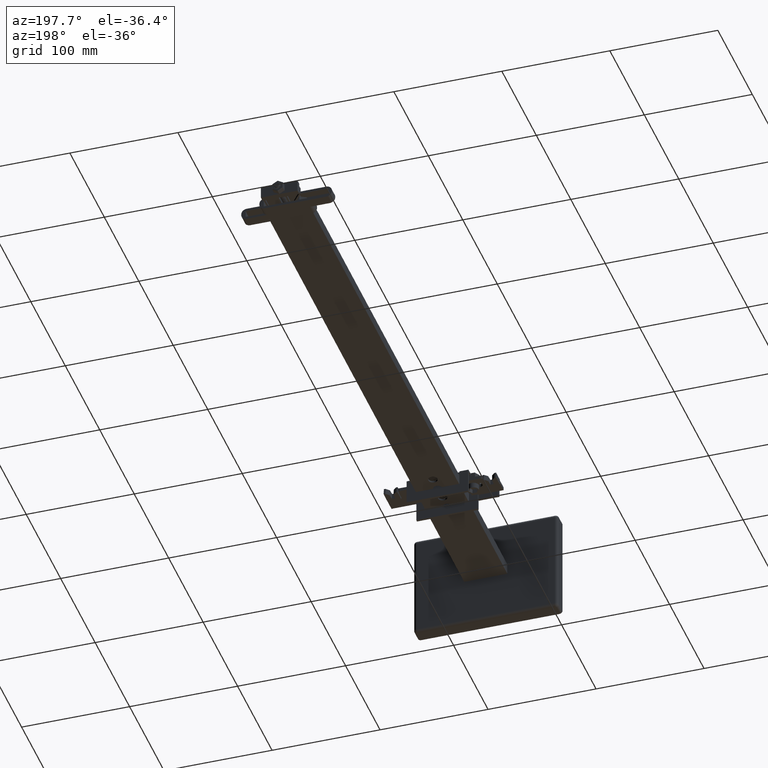
[diagram: clean part render]
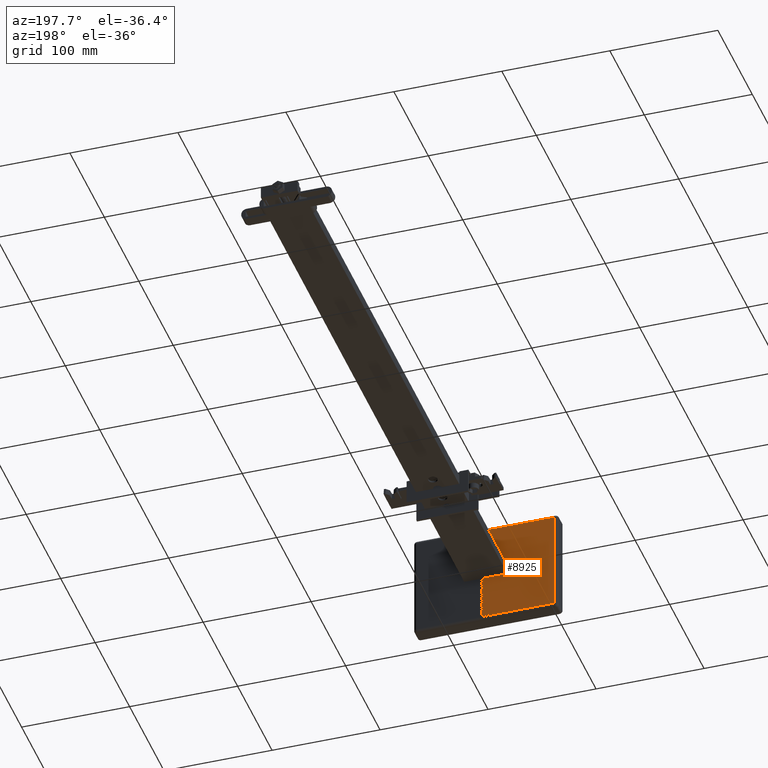
[diagram: same view with one face highlighted and labeled with its STEP entity id]
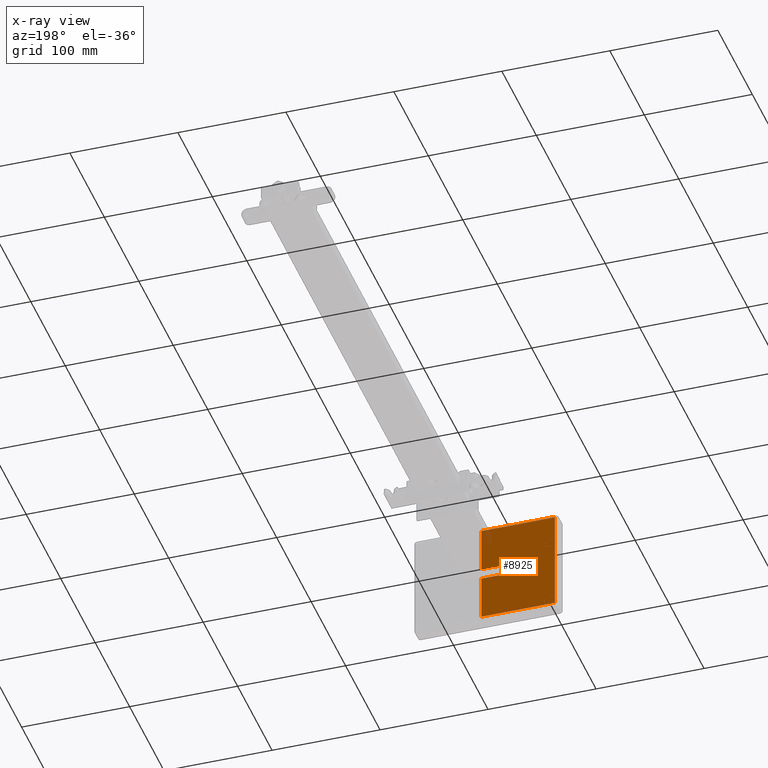
[diagram: x-ray of the same camera — body ghosted, the highlighted face saturated]
A machine part, auxiliary view. The second image highlights one B-rep face of the part: STEP entity #8925.
The next image is the same camera in x-ray: the body ghosted, the highlighted face saturated — about 2% of this face is hidden behind the body in this view.
In plain terms, the highlighted planar face has unit normal (0, -1, 0).
Its self-contained STEP definition (entity closure, byte-faithful):
#1067=FACE_OUTER_BOUND('',#1590,.T.);
#1590=EDGE_LOOP('',(#6289,#6290,#6291,#6292,#6293,#6294,#6295,#6296));
#2173=LINE('',#12685,#2986);
#2177=LINE('',#12694,#2990);
#2179=LINE('',#12698,#2992);
#2181=LINE('',#12702,#2994);
#2182=LINE('',#12705,#2995);
#2183=LINE('',#12707,#2996);
#2184=LINE('',#12709,#2997);
#2185=LINE('',#12710,#2998);
#2986=VECTOR('',#10525,10.);
#2990=VECTOR('',#10533,10.);
#2992=VECTOR('',#10537,10.);
#2994=VECTOR('',#10541,10.);
#2995=VECTOR('',#10544,10.);
#2996=VECTOR('',#10545,10.);
#2997=VECTOR('',#10546,10.);
#2998=VECTOR('',#10547,10.);
#3779=VERTEX_POINT('',#12682);
#3780=VERTEX_POINT('',#12684);
#3783=VERTEX_POINT('',#12692);
#3784=VERTEX_POINT('',#12696);
#3785=VERTEX_POINT('',#12700);
#3786=VERTEX_POINT('',#12704);
#3787=VERTEX_POINT('',#12706);
#3788=VERTEX_POINT('',#12708);
#4733=EDGE_CURVE('',#3779,#3780,#2173,.T.);
#4738=EDGE_CURVE('',#3779,#3783,#2177,.T.);
#4740=EDGE_CURVE('',#3783,#3784,#2179,.T.);
#4742=EDGE_CURVE('',#3784,#3785,#2181,.T.);
#4743=EDGE_CURVE('',#3786,#3785,#2182,.T.);
#4744=EDGE_CURVE('',#3787,#3786,#2183,.T.);
#4745=EDGE_CURVE('',#3788,#3787,#2184,.T.);
#4746=EDGE_CURVE('',#3780,#3788,#2185,.T.);
#6289=ORIENTED_EDGE('',*,*,#4738,.T.);
#6290=ORIENTED_EDGE('',*,*,#4740,.T.);
#6291=ORIENTED_EDGE('',*,*,#4742,.T.);
#6292=ORIENTED_EDGE('',*,*,#4743,.F.);
#6293=ORIENTED_EDGE('',*,*,#4744,.F.);
#6294=ORIENTED_EDGE('',*,*,#4745,.F.);
#6295=ORIENTED_EDGE('',*,*,#4746,.F.);
#6296=ORIENTED_EDGE('',*,*,#4733,.F.);
#8692=PLANE('',#9611);
#8925=ADVANCED_FACE('',(#1067),#8692,.F.);
#9611=AXIS2_PLACEMENT_3D('',#12703,#10542,#10543);
#10525=DIRECTION('',(0.,1.,0.));
#10533=DIRECTION('',(0.,0.,1.));
#10537=DIRECTION('',(0.,-1.,0.));
#10541=DIRECTION('',(0.,0.,-1.));
#10542=DIRECTION('center_axis',(1.,0.,0.));
#10543=DIRECTION('ref_axis',(0.,0.,-1.));
#10544=DIRECTION('',(0.,1.,0.));
#10545=DIRECTION('',(0.,0.,-1.));
#10546=DIRECTION('',(0.,-1.,0.));
#10547=DIRECTION('',(0.,0.,1.));
#12682=CARTESIAN_POINT('',(0.,55.1,-71.));
#12684=CARTESIAN_POINT('',(0.,97.,-71.));
#12685=CARTESIAN_POINT('',(0.,0.,-71.));
#12692=CARTESIAN_POINT('',(0.,55.1,-47.));
#12694=CARTESIAN_POINT('',(0.,55.1,-56.4551239696356));
#12696=CARTESIAN_POINT('',(0.,44.9,-47.));
#12698=CARTESIAN_POINT('',(0.,52.55,-47.));
#12700=CARTESIAN_POINT('',(0.,44.9,-71.));
#12702=CARTESIAN_POINT('',(0.,44.9,-41.25));
#12703=CARTESIAN_POINT('Origin',(0.,50.,-35.5));
#12704=CARTESIAN_POINT('',(0.,3.,-71.));
#12705=CARTESIAN_POINT('',(0.,0.,-71.));
#12706=CARTESIAN_POINT('',(0.,3.,-3.));
#12707=CARTESIAN_POINT('',(0.,3.,-17.75));
#12708=CARTESIAN_POINT('',(0.,97.,-3.00000000000001));
#12709=CARTESIAN_POINT('',(0.,75.,-3.));
#12710=CARTESIAN_POINT('',(0.,97.,-53.25));